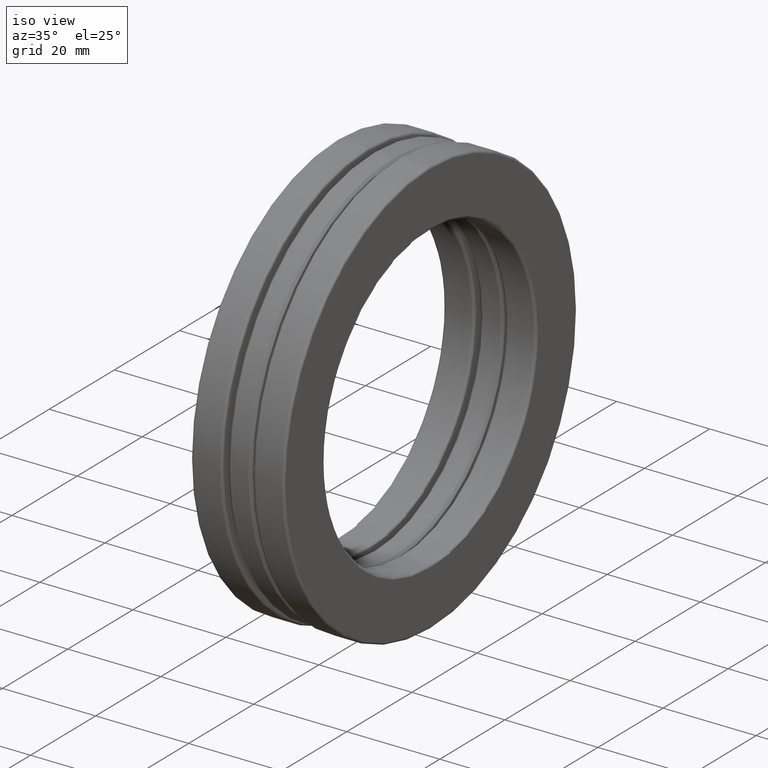
[diagram: clean part render]
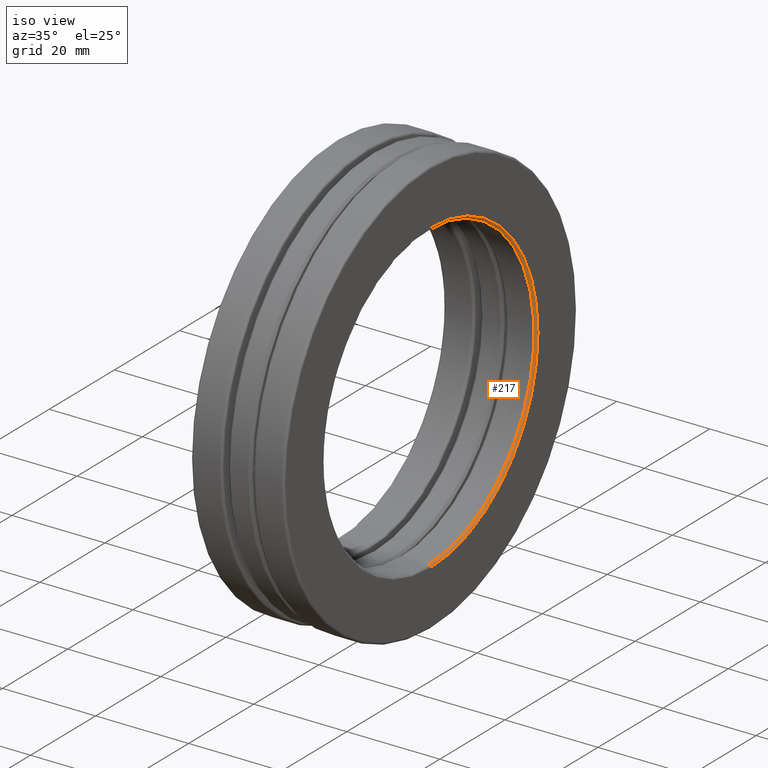
[diagram: same view with one face highlighted and labeled with its STEP entity id]
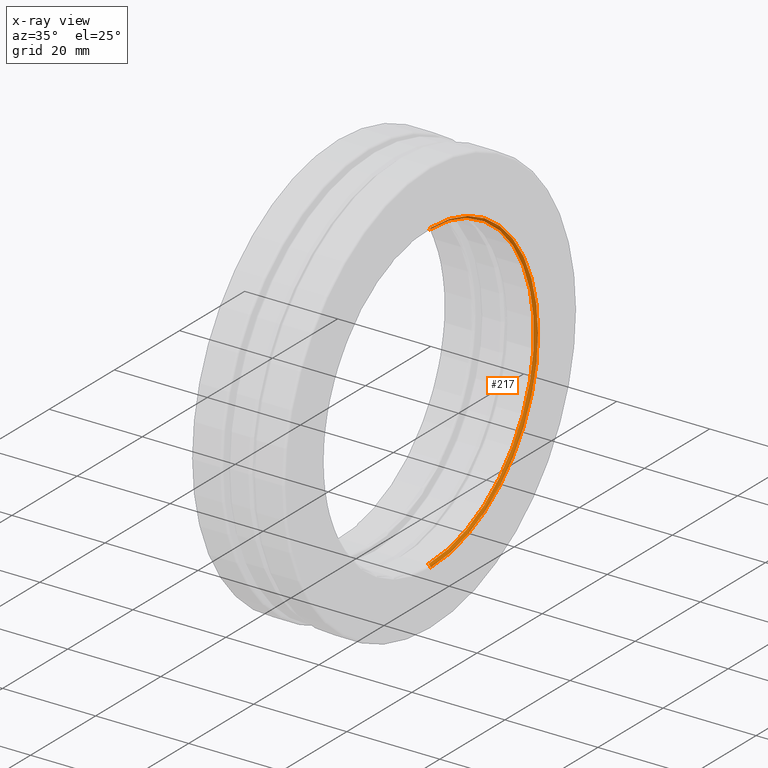
[diagram: x-ray of the same camera — body ghosted, the highlighted face saturated]
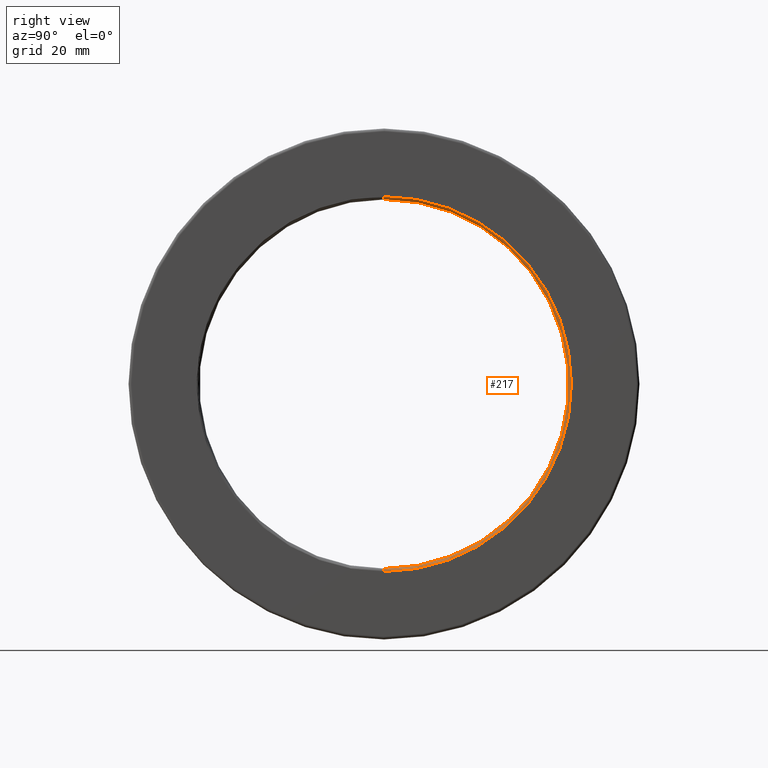
[diagram: same view with one face highlighted and labeled with its STEP entity id]
A machine part, iso view. The second image highlights one B-rep face of the part: STEP entity #217.
The next image is the same camera in x-ray: the body ghosted, the highlighted face saturated — about 0% of this face is hidden behind the body in this view.
A second angle (right view) of the same face is appended — the face is thin or edge-on in the first view.
In plain terms, the highlighted toroidal blend (fillet) surface has major radius 33.0136 mm and minor (blend) radius 0.508 mm.
Its self-contained STEP definition (entity closure, byte-faithful):
#40 = FACE_OUTER_BOUND ( 'NONE', #1146, .T. ) ;
#87 = AXIS2_PLACEMENT_3D ( 'NONE', #504, #1335, #649 ) ;
#102 = TOROIDAL_SURFACE ( 'NONE', #1769, 1.299749999999999961, 0.01999999999999975409 ) ;
#106 = CARTESIAN_POINT ( 'NONE',  ( 0.3735000000000003317, 1.591734677191772350E-16, -1.299749999999999961 ) ) ;
#112 = EDGE_CURVE ( 'NONE', #1044, #1684, #1621, .T. ) ;
#166 = AXIS2_PLACEMENT_3D ( 'NONE', #939, #1071, #1609 ) ;
#217 = ADVANCED_FACE ( 'NONE', ( #40 ), #102, .T. ) ;
#236 = DIRECTION ( 'NONE',  ( -0.0000000000000000000, 1.000000000000000000, 1.224646799147353207E-16 ) ) ;
#263 = AXIS2_PLACEMENT_3D ( 'NONE', #1012, #888, #1725 ) ;
#308 = DIRECTION ( 'NONE',  ( -1.000000000000000000, -0.0000000000000000000, -0.0000000000000000000 ) ) ;
#403 = ORIENTED_EDGE ( 'NONE', *, *, #112, .F. ) ;
#406 = EDGE_CURVE ( 'NONE', #1553, #1047, #1017, .T. ) ;
#469 = CARTESIAN_POINT ( 'NONE',  ( 0.3735000000000003317, 0.0000000000000000000, 1.279750000000000165 ) ) ;
#504 = CARTESIAN_POINT ( 'NONE',  ( 0.3735000000000003317, 0.0000000000000000000, 1.299749999999999961 ) ) ;
#566 = ORIENTED_EDGE ( 'NONE', *, *, #1751, .T. ) ;
#649 = DIRECTION ( 'NONE',  ( 0.0000000000000000000, 0.0000000000000000000, -1.000000000000000000 ) ) ;
#652 = CIRCLE ( 'NONE', #166, 1.299749999999999961 ) ;
#714 = DIRECTION ( 'NONE',  ( 0.0000000000000000000, 0.0000000000000000000, 1.000000000000000000 ) ) ;
#861 = AXIS2_PLACEMENT_3D ( 'NONE', #106, #236, #1629 ) ;
#870 = CARTESIAN_POINT ( 'NONE',  ( 0.3735000000000003317, 0.0000000000000000000, 0.0000000000000000000 ) ) ;
#888 = DIRECTION ( 'NONE',  ( -1.000000000000000000, -0.0000000000000000000, -0.0000000000000000000 ) ) ;
#939 = CARTESIAN_POINT ( 'NONE',  ( 0.3935000000000000719, 0.0000000000000000000, 0.0000000000000000000 ) ) ;
#1012 = CARTESIAN_POINT ( 'NONE',  ( 0.3735000000000003317, 0.0000000000000000000, 0.0000000000000000000 ) ) ;
#1017 = CIRCLE ( 'NONE', #861, 0.01999999999999978531 ) ;
#1044 = VERTEX_POINT ( 'NONE', #469 ) ;
#1047 = VERTEX_POINT ( 'NONE', #1428 ) ;
#1071 = DIRECTION ( 'NONE',  ( -1.000000000000000000, -0.0000000000000000000, -0.0000000000000000000 ) ) ;
#1146 = EDGE_LOOP ( 'NONE', ( #566, #1661, #1597, #403 ) ) ;
#1335 = DIRECTION ( 'NONE',  ( 0.0000000000000000000, -1.000000000000000000, 0.0000000000000000000 ) ) ;
#1362 = EDGE_CURVE ( 'NONE', #1684, #1047, #652, .T. ) ;
#1428 = CARTESIAN_POINT ( 'NONE',  ( 0.3935000000000000719, 1.591734677191772350E-16, -1.299749999999999961 ) ) ;
#1548 = CARTESIAN_POINT ( 'NONE',  ( 0.3735000000000003317, 1.567241741208825587E-16, -1.279750000000000165 ) ) ;
#1553 = VERTEX_POINT ( 'NONE', #1548 ) ;
#1597 = ORIENTED_EDGE ( 'NONE', *, *, #1362, .F. ) ;
#1609 = DIRECTION ( 'NONE',  ( 0.0000000000000000000, 0.0000000000000000000, 1.000000000000000000 ) ) ;
#1621 = CIRCLE ( 'NONE', #87, 0.01999999999999978531 ) ;
#1629 = DIRECTION ( 'NONE',  ( 0.0000000000000000000, -1.224646799147355919E-16, 1.000000000000000000 ) ) ;
#1661 = ORIENTED_EDGE ( 'NONE', *, *, #406, .T. ) ;
#1684 = VERTEX_POINT ( 'NONE', #1716 ) ;
#1716 = CARTESIAN_POINT ( 'NONE',  ( 0.3935000000000000719, 0.0000000000000000000, 1.299749999999999961 ) ) ;
#1725 = DIRECTION ( 'NONE',  ( 0.0000000000000000000, 0.0000000000000000000, 1.000000000000000000 ) ) ;
#1745 = CIRCLE ( 'NONE', #263, 1.279750000000000165 ) ;
#1751 = EDGE_CURVE ( 'NONE', #1044, #1553, #1745, .T. ) ;
#1769 = AXIS2_PLACEMENT_3D ( 'NONE', #870, #308, #714 ) ;